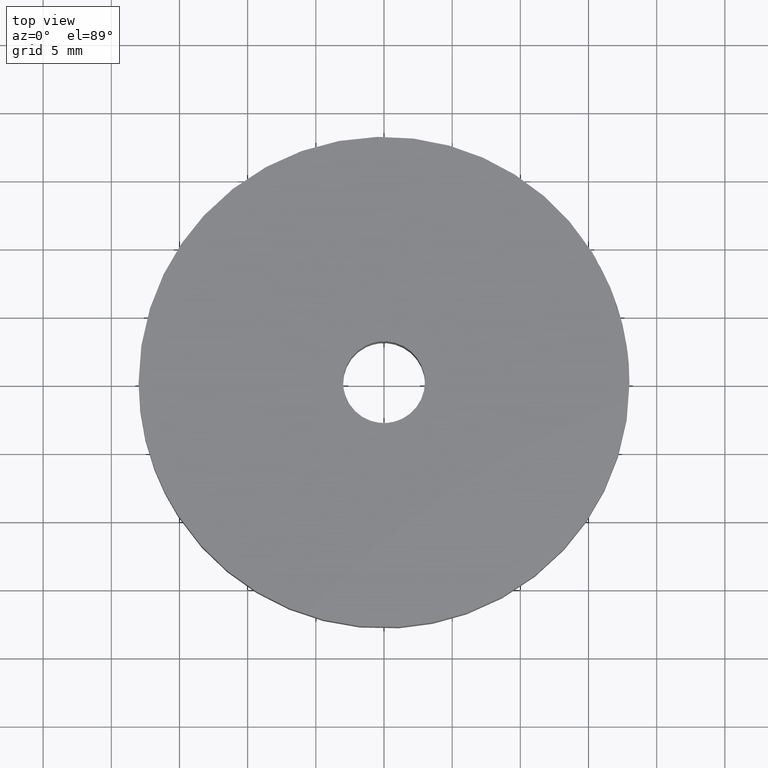
[diagram: clean part render]
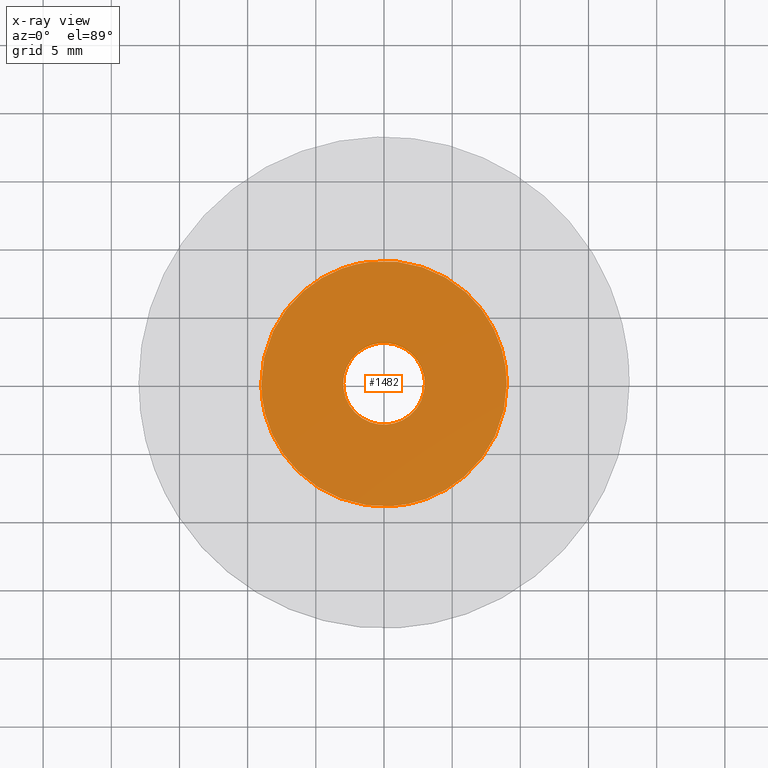
[diagram: x-ray — body ghosted, one internal face saturated and labeled with its STEP entity id]
A machine part, top view, then the same camera in x-ray: the body is ghosted and one INTERNAL B-rep face — a face not visible from any outside direction — is saturated and labeled: STEP entity #1482.
In plain terms, the highlighted face is a freeform B-spline surface patch.
Its self-contained STEP definition (entity closure, byte-faithful):
#735=CARTESIAN_POINT('',(-0.354102703998569,2.979028579087636,10.0));
#736=VERTEX_POINT('',#735);
#742=CARTESIAN_POINT('',(3.0,0.0,10.0));
#743=VERTEX_POINT('',#742);
#744=CARTESIAN_POINT('',(-0.354102703998569,2.979028579087636,10.0));
#745=CARTESIAN_POINT('',(-0.177672358984323,3.0,10.0));
#746=CARTESIAN_POINT('',(0.0,3.0,10.0));
#747=CARTESIAN_POINT('',(3.0,3.0,10.000000000000002));
#748=CARTESIAN_POINT('',(3.0,0.0,10.0));
#756=(BOUNDED_CURVE()B_SPLINE_CURVE(2,(#744,#745,#746,#747,#748),.UNSPECIFIED.,.F.,.U.)B_SPLINE_CURVE_WITH_KNOTS((3,2,3),(0.229562473512434,0.250000000000000,0.500000000000000),.UNSPECIFIED.)CURVE()GEOMETRIC_REPRESENTATION_ITEM()RATIONAL_B_SPLINE_CURVE((0.956026754181593,0.976055948329886,1.0,0.707106781186548,1.0))REPRESENTATION_ITEM(''));
#757=EDGE_CURVE('',#736,#743,#756,.T.);
#759=CARTESIAN_POINT('',(0.183145618665812,-2.994404395261855,10.0));
#760=VERTEX_POINT('',#759);
#761=CARTESIAN_POINT('',(3.0,0.0,10.0));
#762=CARTESIAN_POINT('',(3.000000000000001,-2.822118200601435,10.0));
#763=CARTESIAN_POINT('',(0.183145618665812,-2.994404395261855,10.0));
#771=(BOUNDED_CURVE()B_SPLINE_CURVE(2,(#761,#762,#763),.UNSPECIFIED.,.F.,.U.)B_SPLINE_CURVE_WITH_KNOTS((3,3),(0.500000000000000,0.739332962234911),.UNSPECIFIED.)CURVE()GEOMETRIC_REPRESENTATION_ITEM()RATIONAL_B_SPLINE_CURVE((1.0,0.719603993291434,0.976072041658075))REPRESENTATION_ITEM(''));
#772=EDGE_CURVE('',#743,#760,#771,.T.);
#846=CARTESIAN_POINT('',(-3.0,0.0,10.0));
#847=VERTEX_POINT('',#846);
#848=CARTESIAN_POINT('',(0.183145618665812,-2.994404395261855,10.0));
#849=CARTESIAN_POINT('',(0.091658289957179,-3.000000000000000,10.0));
#850=CARTESIAN_POINT('',(0.0,-3.0,10.0));
#851=CARTESIAN_POINT('',(-3.0,-3.0,10.000000000000002));
#852=CARTESIAN_POINT('',(-3.0,0.0,10.0));
#860=(BOUNDED_CURVE()B_SPLINE_CURVE(2,(#848,#849,#850,#851,#852),.UNSPECIFIED.,.F.,.U.)B_SPLINE_CURVE_WITH_KNOTS((3,2,3),(0.739332962234911,0.750000000000000,1.0),.UNSPECIFIED.)CURVE()GEOMETRIC_REPRESENTATION_ITEM()RATIONAL_B_SPLINE_CURVE((0.976072041658075,0.987502787895113,1.0,0.707106781186548,1.0))REPRESENTATION_ITEM(''));
#861=EDGE_CURVE('',#760,#847,#860,.T.);
#863=CARTESIAN_POINT('',(-3.0,0.0,10.0));
#864=CARTESIAN_POINT('',(-3.000000000000000,2.664523577803135,9.999999999999998));
#865=CARTESIAN_POINT('',(-0.354102703998569,2.979028579087637,9.999999999999998));
#873=(BOUNDED_CURVE()B_SPLINE_CURVE(2,(#863,#864,#865),.UNSPECIFIED.,.F.,.U.)B_SPLINE_CURVE_WITH_KNOTS((3,3),(0.0,0.229562473512434),.UNSPECIFIED.)CURVE()GEOMETRIC_REPRESENTATION_ITEM()RATIONAL_B_SPLINE_CURVE((1.0,0.731050832856661,0.956026754181594))REPRESENTATION_ITEM(''));
#874=EDGE_CURVE('',#847,#736,#873,.T.);
#902=CARTESIAN_POINT('',(-1.062304371392749,8.937086181888683,9.999999999999869));
#903=VERTEX_POINT('',#902);
#904=CARTESIAN_POINT('',(9.0,0.0,10.0));
#905=VERTEX_POINT('',#904);
#906=CARTESIAN_POINT('',(-1.062304371392749,8.937086181888683,9.999999999999869));
#907=CARTESIAN_POINT('',(-0.533015186836130,9.0,9.999999999999998));
#908=CARTESIAN_POINT('',(0.0,9.0,10.0));
#909=CARTESIAN_POINT('',(9.0,9.0,10.0));
#910=CARTESIAN_POINT('',(9.0,0.0,10.0));
#918=(BOUNDED_CURVE()B_SPLINE_CURVE(2,(#906,#907,#908,#909,#910),.UNSPECIFIED.,.F.,.U.)B_SPLINE_CURVE_WITH_KNOTS((3,2,3),(0.229562544250081,0.250000000000000,0.500000000000000),.UNSPECIFIED.)CURVE()GEOMETRIC_REPRESENTATION_ITEM()RATIONAL_B_SPLINE_CURVE((0.956026892830324,0.976056031204195,1.0,0.707106781186547,1.0))REPRESENTATION_ITEM(''));
#919=EDGE_CURVE('',#903,#905,#918,.T.);
#960=CARTESIAN_POINT('',(0.549430892709256,-8.983213550511920,10.000000000000259));
#961=VERTEX_POINT('',#960);
#967=CARTESIAN_POINT('',(9.0,0.0,10.0));
#968=CARTESIAN_POINT('',(9.000000000000002,-8.466360232665817,10.0));
#969=CARTESIAN_POINT('',(0.549430892709256,-8.983213550511920,10.000000000000259));
#977=(BOUNDED_CURVE()B_SPLINE_CURVE(2,(#967,#968,#969),.UNSPECIFIED.,.F.,.U.)B_SPLINE_CURVE_WITH_KNOTS((3,3),(0.500000000000000,0.739333076779450),.UNSPECIFIED.)CURVE()GEOMETRIC_REPRESENTATION_ITEM()RATIONAL_B_SPLINE_CURVE((1.0,0.719603859094158,0.976072287148952))REPRESENTATION_ITEM(''));
#978=EDGE_CURVE('',#905,#961,#977,.T.);
#1001=CARTESIAN_POINT('',(-9.0,0.0,10.0));
#1002=VERTEX_POINT('',#1001);
#1003=CARTESIAN_POINT('',(-9.0,0.0,10.0));
#1004=CARTESIAN_POINT('',(-9.000000000000002,7.993574102735220,10.0));
#1005=CARTESIAN_POINT('',(-1.062304371392749,8.937086181888683,9.999999999999869));
#1013=(BOUNDED_CURVE()B_SPLINE_CURVE(2,(#1003,#1004,#1005),.UNSPECIFIED.,.F.,.U.)B_SPLINE_CURVE_WITH_KNOTS((3,3),(0.0,0.229562544250081),.UNSPECIFIED.)CURVE()GEOMETRIC_REPRESENTATION_ITEM()RATIONAL_B_SPLINE_CURVE((1.0,0.731050749982352,0.956026892830324))REPRESENTATION_ITEM(''));
#1014=EDGE_CURVE('',#1002,#903,#1013,.T.);
#1016=CARTESIAN_POINT('',(0.549430892709256,-8.983213550511920,10.000000000000259));
#1017=CARTESIAN_POINT('',(0.274971879775241,-9.000000000000002,10.0));
#1018=CARTESIAN_POINT('',(0.0,-9.0,10.0));
#1019=CARTESIAN_POINT('',(-9.0,-9.0,10.0));
#1020=CARTESIAN_POINT('',(-9.0,0.0,10.0));
#1028=(BOUNDED_CURVE()B_SPLINE_CURVE(2,(#1016,#1017,#1018,#1019,#1020),.UNSPECIFIED.,.F.,.U.)B_SPLINE_CURVE_WITH_KNOTS((3,2,3),(0.739333076779450,0.750000000000000,1.0),.UNSPECIFIED.)CURVE()GEOMETRIC_REPRESENTATION_ITEM()RATIONAL_B_SPLINE_CURVE((0.976072287148952,0.987502922092389,1.0,0.707106781186547,1.0))REPRESENTATION_ITEM(''));
#1029=EDGE_CURVE('',#961,#1002,#1028,.T.);
#1465=CARTESIAN_POINT('',(-9.899099965112507,-9.898881420025511,10.0));
#1466=CARTESIAN_POINT('',(9.899100447910129,-9.898881420025511,10.0));
#1467=CARTESIAN_POINT('',(-9.899099965112507,9.898936298021955,10.0));
#1468=CARTESIAN_POINT('',(9.899100447910129,9.898936298021955,10.0));
#1469=B_SPLINE_SURFACE_WITH_KNOTS('',1,1,((#1465,#1467),(#1466,#1468)),.UNSPECIFIED.,.F.,.F.,.U.,(2,2),(2,2),(0.0,19.798200413022631),(0.0,19.797817718047469),.UNSPECIFIED.);
#1470=ORIENTED_EDGE('',*,*,#1014,.T.);
#1471=ORIENTED_EDGE('',*,*,#919,.T.);
#1472=ORIENTED_EDGE('',*,*,#978,.T.);
#1473=ORIENTED_EDGE('',*,*,#1029,.T.);
#1474=EDGE_LOOP('',(#1470,#1471,#1472,#1473));
#1475=FACE_OUTER_BOUND('',#1474,.T.);
#1476=ORIENTED_EDGE('',*,*,#772,.F.);
#1477=ORIENTED_EDGE('',*,*,#757,.F.);
#1478=ORIENTED_EDGE('',*,*,#874,.F.);
#1479=ORIENTED_EDGE('',*,*,#861,.F.);
#1480=EDGE_LOOP('',(#1476,#1477,#1478,#1479));
#1481=FACE_BOUND('',#1480,.T.);
#1482=ADVANCED_FACE('',(#1475,#1481),#1469,.F.);